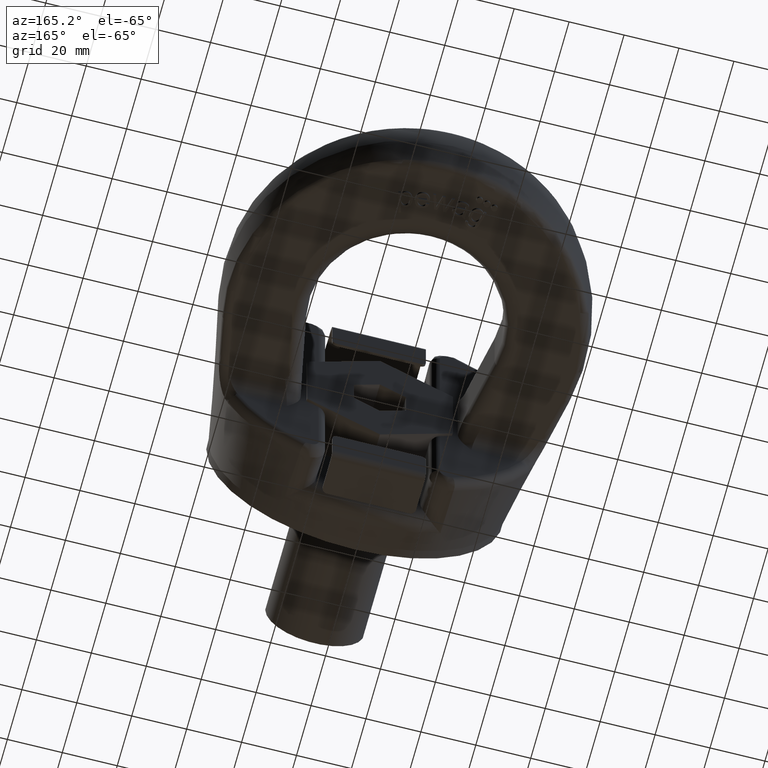
[diagram: clean part render]
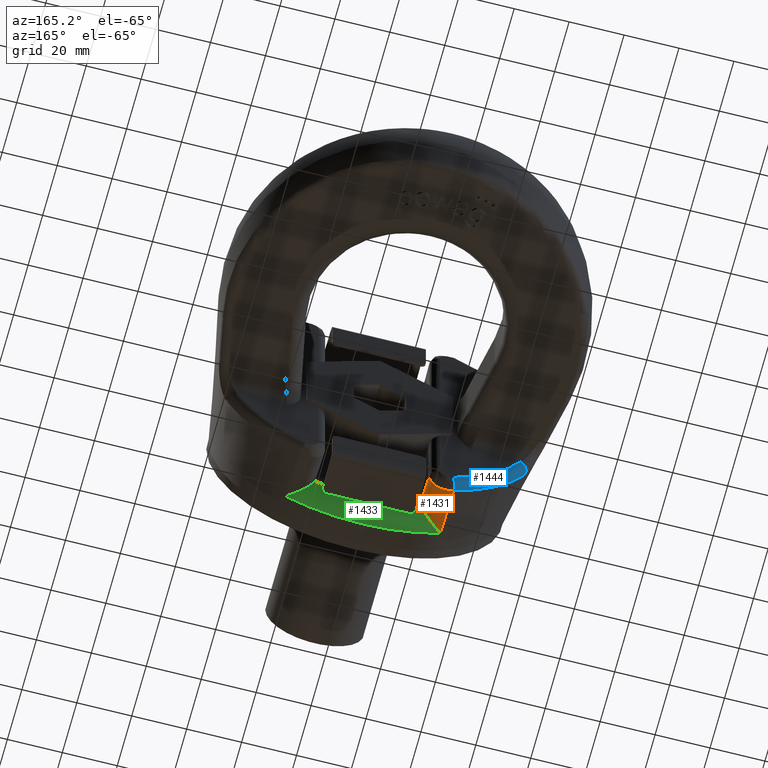
[diagram: same view with three faces highlighted in distinct colors, each labeled with its STEP entity id]
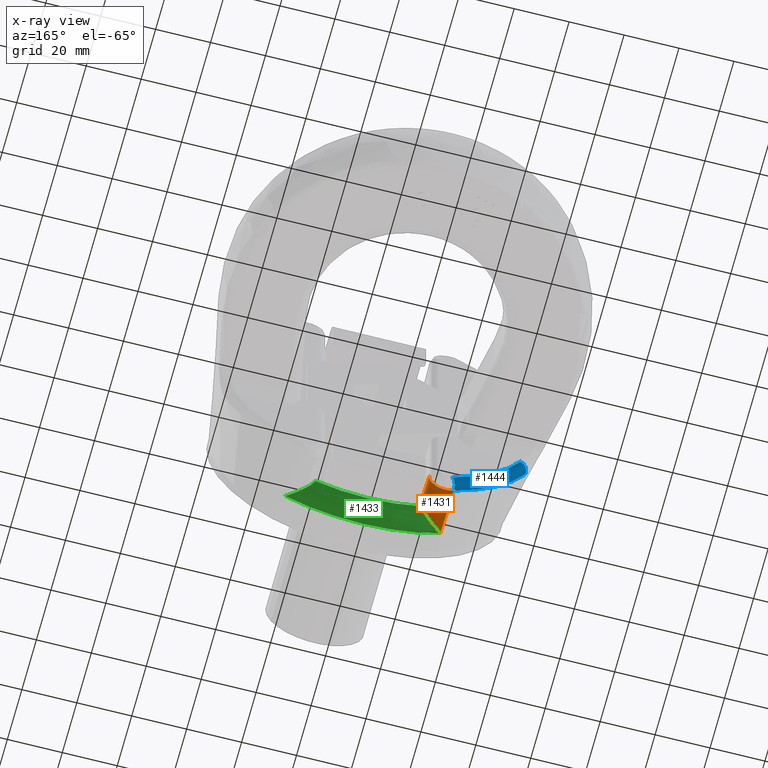
[diagram: x-ray of the same camera — body ghosted, the three highlighted faces saturated]
A machine part, auxiliary view with three faces highlighted in distinct colors.
The next image is the same camera in x-ray (body ghosted, the three faces saturated) — at least one of them is partly hidden behind the body in this view.
Their STEP definitions:

[orange] entity #1431 — the highlighted face is a freeform B-spline surface patch.
#1034=(
BOUNDED_SURFACE()
B_SPLINE_SURFACE(3,2,((#8424,#8425,#8426),(#8427,#8428,#8429),(#8430,#8431,
#8432),(#8433,#8434,#8435)),.UNSPECIFIED.,.F.,.F.,.F.)
B_SPLINE_SURFACE_WITH_KNOTS((4,4),(3,3),(0.,1.),(0.,1.),.UNSPECIFIED.)
GEOMETRIC_REPRESENTATION_ITEM()
RATIONAL_B_SPLINE_SURFACE(((1.,0.518093466365157,1.),(1.,0.512687852844743,
1.),(1.,0.506814011236886,1.),(1.,0.500317398031528,1.)))
REPRESENTATION_ITEM('')
SURFACE()
);
#1199=FACE_OUTER_BOUND('',#1962,.T.);
#1431=ADVANCED_FACE('',(#1199),#1034,.T.);
#1962=EDGE_LOOP('',(#3363,#3364,#3365,#3366,#3367));
#3363=ORIENTED_EDGE('',*,*,#4376,.F.);
#3364=ORIENTED_EDGE('',*,*,#4640,.T.);
#3365=ORIENTED_EDGE('',*,*,#4633,.F.);
#3366=ORIENTED_EDGE('',*,*,#4629,.F.);
#3367=ORIENTED_EDGE('',*,*,#4641,.F.);
#3986=VERTEX_POINT('',#6774);
#3987=VERTEX_POINT('',#6782);
#4145=VERTEX_POINT('',#8378);
#4146=VERTEX_POINT('',#8383);
#4149=VERTEX_POINT('',#8397);
#4376=EDGE_CURVE('',#3986,#3987,#4889,.T.);
#4629=EDGE_CURVE('',#4145,#4146,#5018,.T.);
#4633=EDGE_CURVE('',#4146,#4149,#5019,.T.);
#4640=EDGE_CURVE('',#3986,#4149,#5020,.T.);
#4641=EDGE_CURVE('',#3987,#4145,#5021,.T.);
#4889=B_SPLINE_CURVE_WITH_KNOTS('',3,(#6775,#6776,#6777,#6778,#6779,#6780,
#6781),.UNSPECIFIED.,.F.,.F.,(4,3,4),(0.,0.244249562483357,1.),
 .UNSPECIFIED.);
#5018=B_SPLINE_CURVE_WITH_KNOTS('',3,(#8379,#8380,#8381,#8382),
 .UNSPECIFIED.,.F.,.F.,(4,4),(0.,1.),.UNSPECIFIED.);
#5019=B_SPLINE_CURVE_WITH_KNOTS('',3,(#8390,#8391,#8392,#8393,#8394,#8395,
#8396),.UNSPECIFIED.,.F.,.F.,(4,3,4),(0.,0.670234278994193,1.),
 .UNSPECIFIED.);
#5020=B_SPLINE_CURVE_WITH_KNOTS('',3,(#8410,#8411,#8412,#8413,#8414,#8415),
 .UNSPECIFIED.,.F.,.F.,(4,2,4),(0.,0.5,1.),.UNSPECIFIED.);
#5021=B_SPLINE_CURVE_WITH_KNOTS('',3,(#8416,#8417,#8418,#8419,#8420,#8421,
#8422,#8423),.UNSPECIFIED.,.F.,.F.,(4,2,2,4),(0.,0.5,0.75,1.),
 .UNSPECIFIED.);
#6774=CARTESIAN_POINT('',(-28.0736861446427,30.2970629951046,-52.3614010930236));
#6775=CARTESIAN_POINT('',(-28.0736861446427,30.2970629951046,-52.3614010930236));
#6776=CARTESIAN_POINT('',(-28.0904026339223,28.7324720021094,-52.0004312589697));
#6777=CARTESIAN_POINT('',(-28.1074080673949,27.1681330642224,-51.638380207237));
#6778=CARTESIAN_POINT('',(-28.1247177290099,25.6040670392467,-51.2751702368287));
#6779=CARTESIAN_POINT('',(-28.1782766823272,20.7645883087915,-50.1513385708942));
#6780=CARTESIAN_POINT('',(-28.234740287178,15.9276825011773,-49.0164714114988));
#6781=CARTESIAN_POINT('',(-28.2946296575564,11.0941259902093,-47.8677480871251));
#6782=CARTESIAN_POINT('',(-28.2946296575564,11.0941259902093,-47.8677480871251));
#8378=CARTESIAN_POINT('',(-19.1984565106548,18.5,-45.6506148354715));
#8379=CARTESIAN_POINT('',(-19.1984565106548,18.5,-45.6506148354715));
#8380=CARTESIAN_POINT('',(-19.0670605846718,18.5,-45.1308099373179));
#8381=CARTESIAN_POINT('',(-18.9999999999999,18.5,-44.5905951298753));
#8382=CARTESIAN_POINT('',(-18.9999999999999,18.5,-44.0544402814318));
#8383=CARTESIAN_POINT('',(-18.9999999999999,18.5,-44.0544402814318));
#8390=CARTESIAN_POINT('',(-18.9999999999999,18.5,-44.0544402814318));
#8391=CARTESIAN_POINT('',(-18.9999999999999,21.2692824712465,-44.6870276387716));
#8392=CARTESIAN_POINT('',(-18.9999999999999,24.0392943628397,-45.3164283522524));
#8393=CARTESIAN_POINT('',(-18.9999999999999,26.8099410490374,-45.943013630152));
#8394=CARTESIAN_POINT('',(-18.9999999999999,28.1731428032204,-46.2513034435855));
#8395=CARTESIAN_POINT('',(-18.9999999999999,29.5364990515149,-46.5589108167885));
#8396=CARTESIAN_POINT('',(-18.9999999999999,30.9,-46.8658746504149));
#8397=CARTESIAN_POINT('',(-18.9999999999999,30.9,-46.8658746504149));
#8410=CARTESIAN_POINT('',(-28.0736861446427,30.2970629951046,-52.3614010930236));
#8411=CARTESIAN_POINT('',(-26.1732436931139,30.1880313097054,-53.355797366601));
#8412=CARTESIAN_POINT('',(-23.8048575131887,30.1966944968571,-53.276741889083));
#8413=CARTESIAN_POINT('',(-20.1486108757174,30.4407631920011,-51.0508731295076));
#8414=CARTESIAN_POINT('',(-18.9999999999994,30.6656683834374,-49.000382145657));
#8415=CARTESIAN_POINT('',(-18.9999999999999,30.9,-46.8658746504149));
#8416=CARTESIAN_POINT('',(-28.2946296575564,11.0941259902093,-47.8677480871251));
#8417=CARTESIAN_POINT('',(-26.9203939174821,12.5418673404173,-49.0135200941759));
#8418=CARTESIAN_POINT('',(-25.2394189156414,14.1066602713053,-49.6850609182458));
#8419=CARTESIAN_POINT('',(-22.5820957417619,16.3332715390783,-49.4015517076804));
#8420=CARTESIAN_POINT('',(-21.684282630973,17.0445060376826,-49.0778488404415));
#8421=CARTESIAN_POINT('',(-20.1168880717166,18.1468862526318,-47.7822314247218));
#8422=CARTESIAN_POINT('',(-19.4848120023178,18.5,-46.7834428593706));
#8423=CARTESIAN_POINT('',(-19.1984565106548,18.5,-45.6506148354715));
#8424=CARTESIAN_POINT('',(-18.9999999999999,31.7000590016337,-47.045913937625));
#8425=CARTESIAN_POINT('',(-18.9999999999999,29.4538213207522,-57.0320229356259));
#8426=CARTESIAN_POINT('',(-28.0715815853606,30.494184991843,-52.4068734665833));
#8427=CARTESIAN_POINT('',(-18.9999999999999,25.191070676576,-45.5818066618553));
#8428=CARTESIAN_POINT('',(-19.0000000002104,22.8288261246331,-55.6929967748419));
#8429=CARTESIAN_POINT('',(-28.1410234817575,23.9851939611568,-50.9055692427151));
#8430=CARTESIAN_POINT('',(-18.9999999999999,18.6852774549709,-44.1033486141105));
#8431=CARTESIAN_POINT('',(-18.9999999999656,16.2549977763195,-54.3658489223395));
#8432=CARTESIAN_POINT('',(-28.2154400299056,17.4793993873767,-49.3855596520316));
#8433=CARTESIAN_POINT('',(-18.9999999999999,12.1843700025624,-42.6057391943003));
#8434=CARTESIAN_POINT('',(-18.9999999999999,9.77568100618482,-53.0615122674113));
#8435=CARTESIAN_POINT('',(-28.2960630152142,10.9784959927717,-47.8402651210996));

[blue] entity #1444 — the highlighted toroidal blend (fillet) surface has major radius 56.3717 mm and minor (blend) radius 3.1 mm.
#1022=TOROIDAL_SURFACE('',#5277,56.371725048885,3.1);
#1212=FACE_OUTER_BOUND('',#1975,.T.);
#1444=ADVANCED_FACE('',(#1212),#1022,.T.);
#1671=CIRCLE('',#5124,56.371725048885);
#1677=CIRCLE('',#5135,59.4125254317);
#1722=CIRCLE('',#5275,3.1);
#1723=CIRCLE('',#5276,3.1);
#1975=EDGE_LOOP('',(#3417,#3418,#3419,#3420));
#3417=ORIENTED_EDGE('',*,*,#4655,.T.);
#3418=ORIENTED_EDGE('',*,*,#4338,.F.);
#3419=ORIENTED_EDGE('',*,*,#4656,.F.);
#3420=ORIENTED_EDGE('',*,*,#4375,.F.);
#3950=VERTEX_POINT('',#6607);
#3951=VERTEX_POINT('',#6609);
#3985=VERTEX_POINT('',#6772);
#3986=VERTEX_POINT('',#6774);
#4338=EDGE_CURVE('',#3950,#3951,#1671,.T.);
#4375=EDGE_CURVE('',#3985,#3986,#1677,.T.);
#4655=EDGE_CURVE('',#3985,#3951,#1722,.T.);
#4656=EDGE_CURVE('',#3986,#3950,#1723,.T.);
#5124=AXIS2_PLACEMENT_3D('',#6608,#5442,#5443);
#5135=AXIS2_PLACEMENT_3D('',#6773,#5483,#5484);
#5275=AXIS2_PLACEMENT_3D('',#8573,#5905,#5906);
#5276=AXIS2_PLACEMENT_3D('',#8592,#5907,#5908);
#5277=AXIS2_PLACEMENT_3D('',#8593,#5909,#5910);
#5442=DIRECTION('',(0.,1.,0.));
#5443=DIRECTION('',(2.34291072916505E-15,0.,-1.));
#5483=DIRECTION('',(0.,-1.,0.));
#5484=DIRECTION('',(-2.34291072916505E-15,0.,1.));
#5905=DIRECTION('',(0.412440811059764,-2.03910454869922E-15,-0.910984400180576));
#5906=DIRECTION('',(-0.910984400180576,0.,-0.412440811059764));
#5907=DIRECTION('',(0.881319228774708,-1.42635571199018E-16,-0.472521340250315));
#5908=DIRECTION('',(-0.472521340250314,0.,-0.881319228774709));
#5909=DIRECTION('',(0.,1.,0.));
#5910=DIRECTION('',(2.34291072916505E-15,0.,-1.));
#6607=CARTESIAN_POINT('',(-26.6368430723213,34.,-49.6814852447832));
#6608=CARTESIAN_POINT('',(1.26838675226105E-13,34.,-3.88529906868289E-14));
#6609=CARTESIAN_POINT('',(-51.3537621308028,34.,-23.2500000000001));
#6772=CARTESIAN_POINT('',(-54.1238838436104,30.2970629951046,-24.5041501761592));
#6773=CARTESIAN_POINT('',(9.90215016532088E-14,30.2970629951047,2.31998538641337E-28));
#6774=CARTESIAN_POINT('',(-28.0736861446427,30.2970629951046,-52.3614010930236));
#8573=CARTESIAN_POINT('',(-51.3537621308028,30.9,-23.2500000000001));
#8592=CARTESIAN_POINT('',(-26.6368430723213,30.9,-49.6814852447832));
#8593=CARTESIAN_POINT('',(1.26838675226105E-13,30.9,-3.88529906868289E-14));

[green] entity #1433 — the highlighted toroidal blend (fillet) surface has major radius 49.5233 mm and minor (blend) radius 6.2 mm.
#1019=TOROIDAL_SURFACE('',#5260,49.523321448062,6.2);
#1201=FACE_OUTER_BOUND('',#1964,.T.);
#1433=ADVANCED_FACE('',(#1201),#1019,.T.);
#1678=CIRCLE('',#5136,55.604922213692);
#1714=CIRCLE('',#5251,49.523321448062);
#1964=EDGE_LOOP('',(#3373,#3374,#3375,#3376));
#3373=ORIENTED_EDGE('',*,*,#4641,.T.);
#3374=ORIENTED_EDGE('',*,*,#4628,.F.);
#3375=ORIENTED_EDGE('',*,*,#4643,.T.);
#3376=ORIENTED_EDGE('',*,*,#4377,.F.);
#3987=VERTEX_POINT('',#6782);
#3988=VERTEX_POINT('',#6784);
#4144=VERTEX_POINT('',#8376);
#4145=VERTEX_POINT('',#8378);
#4377=EDGE_CURVE('',#3987,#3988,#1678,.T.);
#4628=EDGE_CURVE('',#4144,#4145,#1714,.T.);
#4641=EDGE_CURVE('',#3987,#4145,#5021,.T.);
#4643=EDGE_CURVE('',#4144,#3988,#5023,.T.);
#5021=B_SPLINE_CURVE_WITH_KNOTS('',3,(#8416,#8417,#8418,#8419,#8420,#8421,
#8422,#8423),.UNSPECIFIED.,.F.,.F.,(4,2,2,4),(0.,0.5,0.75,1.),
 .UNSPECIFIED.);
#5023=B_SPLINE_CURVE_WITH_KNOTS('',3,(#8442,#8443,#8444,#8445,#8446,#8447,
#8448,#8449),.UNSPECIFIED.,.F.,.F.,(4,2,2,4),(0.,0.25,0.5,1.),
 .UNSPECIFIED.);
#5136=AXIS2_PLACEMENT_3D('',#6783,#5485,#5486);
#5251=AXIS2_PLACEMENT_3D('',#8377,#5850,#5851);
#5260=AXIS2_PLACEMENT_3D('',#8462,#5875,#5876);
#5485=DIRECTION('',(-1.82602471155453E-16,-1.,-4.27821288842163E-31));
#5486=DIRECTION('',(-1.,1.87183803906085E-16,-2.34291072916505E-15));
#5850=DIRECTION('',(1.82602471155453E-16,1.,4.27821288842163E-31));
#5851=DIRECTION('',(1.,-2.10170492437117E-16,2.34291072916505E-15));
#5875=DIRECTION('',(1.82602471155453E-16,1.,4.27821288842163E-31));
#5876=DIRECTION('',(1.,-1.86786081399727E-16,2.34291072916505E-15));
#6782=CARTESIAN_POINT('',(-28.2946296575564,11.0941259902093,-47.8677480871251));
#6783=CARTESIAN_POINT('',(1.17010629602309E-13,11.0941259902092,2.74145459521607E-28));
#6784=CARTESIAN_POINT('',(28.2946296575566,11.0941259902093,-47.8677480871251));
#8376=CARTESIAN_POINT('',(19.198456510655,18.5,-45.6506148354716));
#8377=CARTESIAN_POINT('',(1.52842476394328E-13,18.5,3.58096277816426E-28));
#8378=CARTESIAN_POINT('',(-19.1984565106548,18.5,-45.6506148354715));
#8416=CARTESIAN_POINT('',(-28.2946296575564,11.0941259902093,-47.8677480871251));
#8417=CARTESIAN_POINT('',(-26.9203939174821,12.5418673404173,-49.0135200941759));
#8418=CARTESIAN_POINT('',(-25.2394189156414,14.1066602713053,-49.6850609182458));
#8419=CARTESIAN_POINT('',(-22.5820957417619,16.3332715390783,-49.4015517076804));
#8420=CARTESIAN_POINT('',(-21.684282630973,17.0445060376826,-49.0778488404415));
#8421=CARTESIAN_POINT('',(-20.1168880717166,18.1468862526318,-47.7822314247218));
#8422=CARTESIAN_POINT('',(-19.4848120023178,18.5,-46.7834428593706));
#8423=CARTESIAN_POINT('',(-19.1984565106548,18.5,-45.6506148354715));
#8442=CARTESIAN_POINT('',(19.198456510655,18.5,-45.6506148354716));
#8443=CARTESIAN_POINT('',(19.484812002318,18.5,-46.7834428593707));
#8444=CARTESIAN_POINT('',(20.1168880717168,18.1468862526318,-47.7822314247218));
#8445=CARTESIAN_POINT('',(21.6842826309733,17.0445060376826,-49.0778488404415));
#8446=CARTESIAN_POINT('',(22.5820957417622,16.3332715390782,-49.4015517076805));
#8447=CARTESIAN_POINT('',(25.2394189156416,14.1066602713053,-49.6850609182457));
#8448=CARTESIAN_POINT('',(26.9203939188407,12.5418673420454,-49.0135200937479));
#8449=CARTESIAN_POINT('',(28.2946296575566,11.0941259902093,-47.8677480871251));
#8462=CARTESIAN_POINT('',(1.51710341073164E-13,12.3,3.55443785825605E-28));